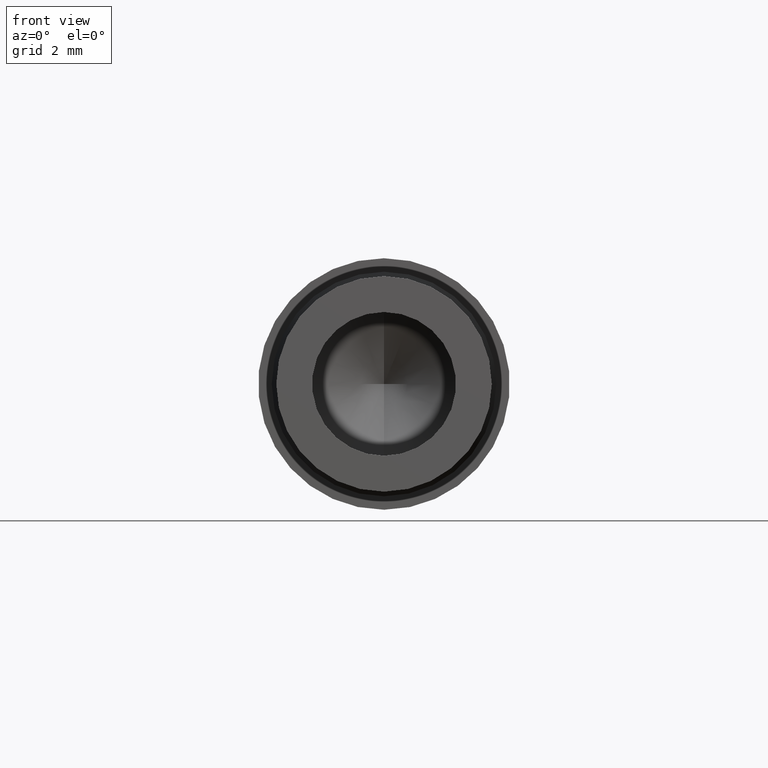
[diagram: clean part render]
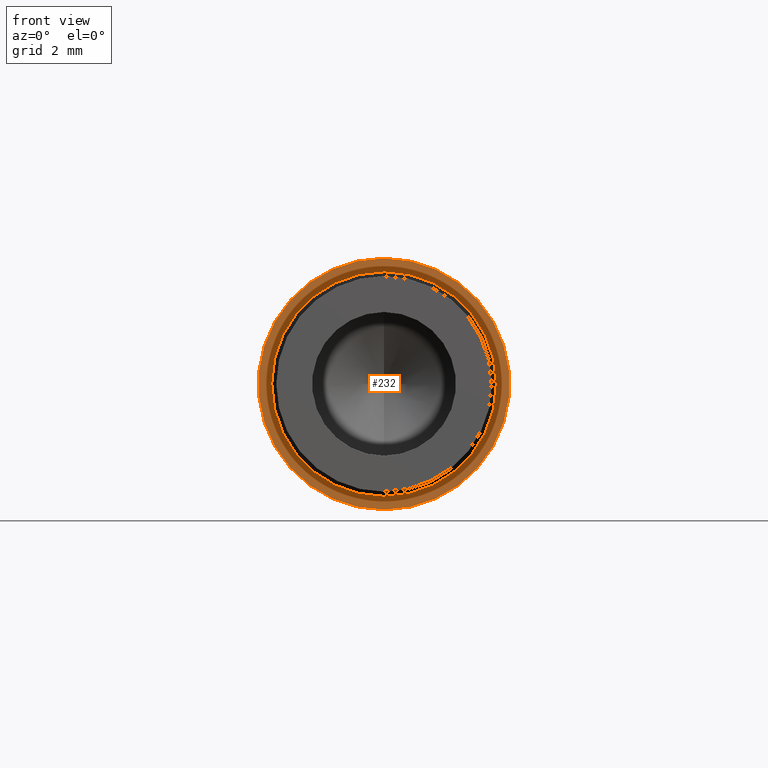
[diagram: same view with one face highlighted and labeled with its STEP entity id]
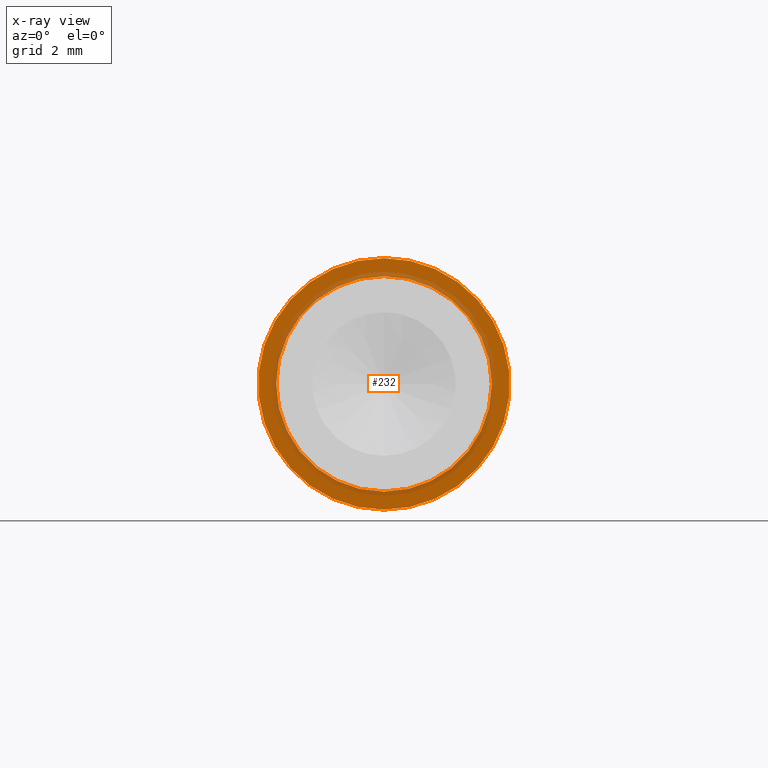
[diagram: x-ray of the same camera — body ghosted, the highlighted face saturated]
A machine part, front view. The second image highlights one B-rep face of the part: STEP entity #232.
The next image is the same camera in x-ray: the body ghosted, the highlighted face saturated — about 24% of this face is hidden behind the body in this view.
In plain terms, the highlighted planar face has unit normal (0, 1, 0).
Its self-contained STEP definition (entity closure, byte-faithful):
#21 = AXIS2_PLACEMENT_3D ( 'NONE', #106, #388, #40 ) ;
#24 = VERTEX_POINT ( 'NONE', #428 ) ;
#30 = CIRCLE ( 'NONE', #229, 3.499999999999999112 ) ;
#34 = CARTESIAN_POINT ( 'NONE',  ( 0.0000000000000000000, -1.799999999999999600, 0.0000000000000000000 ) ) ;
#40 = DIRECTION ( 'NONE',  ( 0.0000000000000000000, 0.0000000000000000000, -1.000000000000000000 ) ) ;
#43 = ORIENTED_EDGE ( 'NONE', *, *, #279, .T. ) ;
#62 = PLANE ( 'NONE',  #218 ) ;
#63 = ORIENTED_EDGE ( 'NONE', *, *, #150, .T. ) ;
#67 = DIRECTION ( 'NONE',  ( 0.0000000000000000000, 0.0000000000000000000, -1.000000000000000000 ) ) ;
#68 = DIRECTION ( 'NONE',  ( -0.0000000000000000000, -1.000000000000000000, -0.0000000000000000000 ) ) ;
#84 = CIRCLE ( 'NONE', #21, 3.000000000000000000 ) ;
#101 = AXIS2_PLACEMENT_3D ( 'NONE', #34, #68, #67 ) ;
#103 = CARTESIAN_POINT ( 'NONE',  ( 0.0000000000000000000, -1.799999999999999600, -3.000000000000000000 ) ) ;
#106 = CARTESIAN_POINT ( 'NONE',  ( 0.0000000000000000000, -1.799999999999999600, 0.0000000000000000000 ) ) ;
#131 = FACE_BOUND ( 'NONE', #355, .T. ) ;
#150 = EDGE_CURVE ( 'NONE', #400, #24, #30, .T. ) ;
#176 = CARTESIAN_POINT ( 'NONE',  ( 0.0000000000000000000, -1.799999999999999600, 0.0000000000000000000 ) ) ;
#201 = DIRECTION ( 'NONE',  ( 0.0000000000000000000, 0.0000000000000000000, -1.000000000000000000 ) ) ;
#203 = CARTESIAN_POINT ( 'NONE',  ( 3.673940397442059868E-16, -1.799999999999999600, 3.000000000000000000 ) ) ;
#210 = DIRECTION ( 'NONE',  ( -0.0000000000000000000, -1.000000000000000000, -0.0000000000000000000 ) ) ;
#211 = CIRCLE ( 'NONE', #422, 3.000000000000000000 ) ;
#218 = AXIS2_PLACEMENT_3D ( 'NONE', #227, #403, #301 ) ;
#227 = CARTESIAN_POINT ( 'NONE',  ( -3.499999999999999112, -1.800000000000000488, 0.0000000000000000000 ) ) ;
#229 = AXIS2_PLACEMENT_3D ( 'NONE', #230, #270, #201 ) ;
#230 = CARTESIAN_POINT ( 'NONE',  ( 0.0000000000000000000, -1.799999999999999600, 0.0000000000000000000 ) ) ;
#232 = ADVANCED_FACE ( 'NONE', ( #131, #240 ), #62, .F. ) ;
#240 = FACE_OUTER_BOUND ( 'NONE', #251, .T. ) ;
#242 = EDGE_CURVE ( 'NONE', #325, #371, #84, .T. ) ;
#251 = EDGE_LOOP ( 'NONE', ( #63, #43 ) ) ;
#266 = ORIENTED_EDGE ( 'NONE', *, *, #310, .F. ) ;
#270 = DIRECTION ( 'NONE',  ( -0.0000000000000000000, -1.000000000000000000, -0.0000000000000000000 ) ) ;
#279 = EDGE_CURVE ( 'NONE', #24, #400, #353, .T. ) ;
#282 = DIRECTION ( 'NONE',  ( 0.0000000000000000000, 0.0000000000000000000, -1.000000000000000000 ) ) ;
#292 = CARTESIAN_POINT ( 'NONE',  ( 0.0000000000000000000, -1.799999999999999600, -3.499999999999999112 ) ) ;
#301 = DIRECTION ( 'NONE',  ( 0.0000000000000000000, -0.0000000000000000000, 1.000000000000000000 ) ) ;
#310 = EDGE_CURVE ( 'NONE', #371, #325, #211, .T. ) ;
#325 = VERTEX_POINT ( 'NONE', #103 ) ;
#353 = CIRCLE ( 'NONE', #101, 3.499999999999999112 ) ;
#355 = EDGE_LOOP ( 'NONE', ( #431, #266 ) ) ;
#371 = VERTEX_POINT ( 'NONE', #203 ) ;
#388 = DIRECTION ( 'NONE',  ( -0.0000000000000000000, -1.000000000000000000, -0.0000000000000000000 ) ) ;
#400 = VERTEX_POINT ( 'NONE', #292 ) ;
#403 = DIRECTION ( 'NONE',  ( 0.0000000000000000000, 1.000000000000000000, 0.0000000000000000000 ) ) ;
#422 = AXIS2_PLACEMENT_3D ( 'NONE', #176, #210, #282 ) ;
#428 = CARTESIAN_POINT ( 'NONE',  ( 4.286263797015735609E-16, -1.799999999999999600, 3.499999999999999112 ) ) ;
#431 = ORIENTED_EDGE ( 'NONE', *, *, #242, .F. ) ;